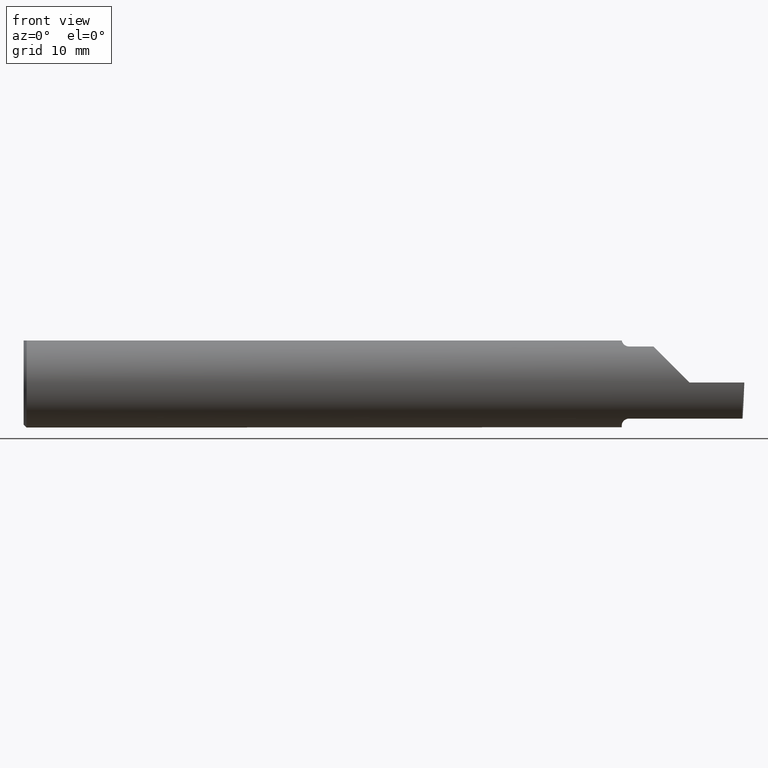
[diagram: clean part render]
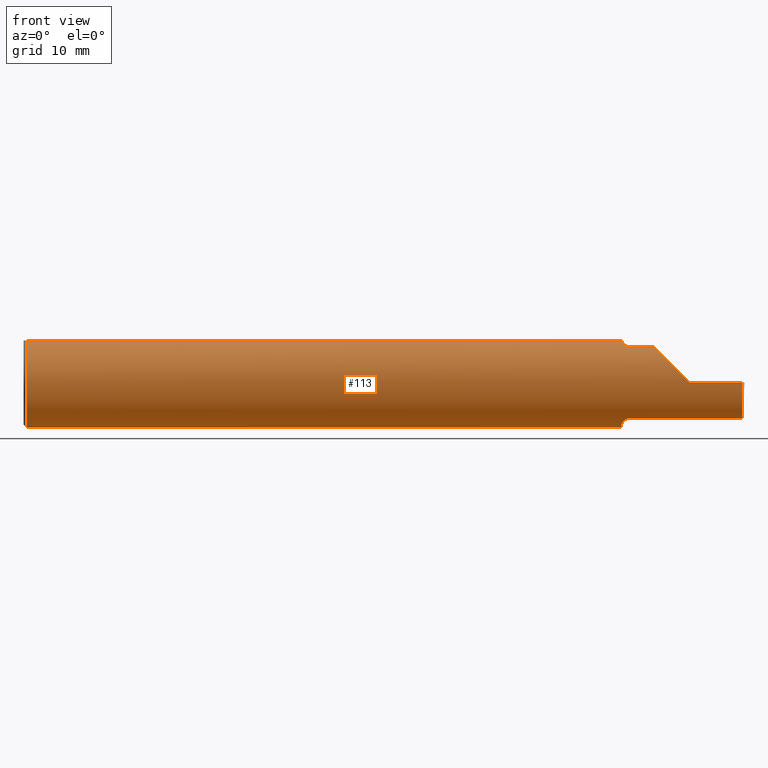
[diagram: same view with one face highlighted and labeled with its STEP entity id]
A machine part, front view. The second image highlights one B-rep face of the part: STEP entity #113.
In plain terms, the highlighted cylindrical surface (partial cylindrical patch) has radius 3.9649 mm, axis along (-1, -0, -0).
Its self-contained STEP definition (entity closure, byte-faithful):
#1 = CARTESIAN_POINT ( 'NONE',  ( 2.100000000000000089, -0.09360841750841740472, -0.1249186702281520622 ) ) ;
#13 = ORIENTED_EDGE ( 'NONE', *, *, #136, .T. ) ;
#24 = B_SPLINE_CURVE_WITH_KNOTS ( 'NONE', 3,
 ( #446, #800, #247, #492, #433, #679, #61, #557 ),
 .UNSPECIFIED., .F., .F.,
 ( 4, 2, 2, 4 ),
 ( 2.042507625475088449E-06, 0.0005263182385139183713, 0.0007884561039581399356, 0.001050593969402361608 ),
 .UNSPECIFIED. ) ;
#25 = VECTOR ( 'NONE', #349, 39.37007874015748143 ) ;
#26 = AXIS2_PLACEMENT_3D ( 'NONE', #325, #684, #569 ) ;
#29 = VERTEX_POINT ( 'NONE', #788 ) ;
#31 = CARTESIAN_POINT ( 'NONE',  ( 0.000000000000000000, 0.05497272050753933964, 0.1460999999999998689 ) ) ;
#39 = CARTESIAN_POINT ( 'NONE',  ( 2.280730820000000048, -0.09360841750841740472, 0.1249186702281520484 ) ) ;
#40 = FACE_OUTER_BOUND ( 'NONE', #229, .T. ) ;
#58 = CARTESIAN_POINT ( 'NONE',  ( 2.075000000000000178, 0.000000000000000000, 0.000000000000000000 ) ) ;
#61 = CARTESIAN_POINT ( 'NONE',  ( 2.085319203512566943, -0.08709887368156811471, 0.1295644080582772639 ) ) ;
#68 = CARTESIAN_POINT ( 'NONE',  ( 2.080057722617700833, -0.07943655142502258071, -0.1344116409581927463 ) ) ;
#76 = CARTESIAN_POINT ( 'NONE',  ( 2.310000000000000053, -0.1560999999999999888, 2.326828918379970872E-17 ) ) ;
#78 = LINE ( 'NONE', #706, #371 ) ;
#80 = CIRCLE ( 'NONE', #26, 0.1560999999999999888 ) ;
#87 = VERTEX_POINT ( 'NONE', #375 ) ;
#91 = VERTEX_POINT ( 'NONE', #419 ) ;
#93 = CIRCLE ( 'NONE', #546, 0.1560999999999999888 ) ;
#97 = DIRECTION ( 'NONE',  ( -1.000000000000000000, -0.000000000000000000, -0.000000000000000000 ) ) ;
#105 = LINE ( 'NONE', #357, #303 ) ;
#107 = EDGE_CURVE ( 'NONE', #334, #132, #105, .T. ) ;
#113 = ADVANCED_FACE ( 'NONE', ( #40 ), #297, .T. ) ;
#119 = VERTEX_POINT ( 'NONE', #137 ) ;
#123 = CARTESIAN_POINT ( 'NONE',  ( 2.494928209896765114, -0.1560999999999999888, 0.000000000000000000 ) ) ;
#129 = CARTESIAN_POINT ( 'NONE',  ( 2.493178846255211134, -0.1561000000000000165, -0.05008759057876781273 ) ) ;
#130 = CARTESIAN_POINT ( 'NONE',  ( 2.095361275910303522, -0.09360841750841737696, -0.1249186702281520900 ) ) ;
#132 = VERTEX_POINT ( 'NONE', #620 ) ;
#136 = EDGE_CURVE ( 'NONE', #795, #776, #430, .T. ) ;
#137 = CARTESIAN_POINT ( 'NONE',  ( 2.087810002172886925, -0.08909999999996048858, -0.1281733201567833991 ) ) ;
#168 =( BOUNDED_CURVE ( )  B_SPLINE_CURVE ( 3, ( #76, #807, #689, #197 ),
 .UNSPECIFIED., .F., .T. ) 
 B_SPLINE_CURVE_WITH_KNOTS ( ( 4, 4 ),
 ( 4.712388980384689674, 5.640097190903854418 ),
 .UNSPECIFIED. ) 
 CURVE ( )  GEOMETRIC_REPRESENTATION_ITEM ( )  RATIONAL_B_SPLINE_CURVE ( ( 1.000000000000000000, 0.9295565493311498395, 0.9295565493311498395, 1.000000000000000000 ) ) 
 REPRESENTATION_ITEM ( '' )  );
#172 = AXIS2_PLACEMENT_3D ( 'NONE', #786, #509, #692 ) ;
#173 = VECTOR ( 'NONE', #631, 39.37007874015748143 ) ;
#189 = CARTESIAN_POINT ( 'NONE',  ( 2.083312875394042418, -0.08466547365232433842, -0.1311808389156052523 ) ) ;
#197 = CARTESIAN_POINT ( 'NONE',  ( 2.185081329771846992, -0.09360841750841733533, 0.1249186702281521039 ) ) ;
#203 = ORIENTED_EDGE ( 'NONE', *, *, #675, .F. ) ;
#208 = VERTEX_POINT ( 'NONE', #264 ) ;
#224 = ORIENTED_EDGE ( 'NONE', *, *, #589, .T. ) ;
#229 = EDGE_LOOP ( 'NONE', ( #363, #350, #224, #711, #394, #595, #655, #693, #300, #672, #13, #486, #458, #203, #583 ) ) ;
#242 = EDGE_CURVE ( 'NONE', #451, #29, #24, .T. ) ;
#247 = CARTESIAN_POINT ( 'NONE',  ( 2.075844056398636894, -0.06777540567362916324, 0.1407770456887920685 ) ) ;
#251 = CARTESIAN_POINT ( 'NONE',  ( 2.074999999999997513, -0.06152246774674052093, -0.1436327148497734130 ) ) ;
#252 = CARTESIAN_POINT ( 'NONE',  ( 2.087810002172886925, -0.08909999999996048858, -0.1281733201567833991 ) ) ;
#253 = DIRECTION ( 'NONE',  ( 0.000000000000000000, 0.000000000000000000, -1.000000000000000000 ) ) ;
#254 = EDGE_CURVE ( 'NONE', #305, #87, #78, .T. ) ;
#264 = CARTESIAN_POINT ( 'NONE',  ( 2.100000000000000089, -0.09360841750841740472, 0.1249186702281520622 ) ) ;
#267 = CARTESIAN_POINT ( 'NONE',  ( 2.087810002172886925, -0.08909999999996048858, -0.1281733201567833991 ) ) ;
#283 = B_SPLINE_CURVE_WITH_KNOTS ( 'NONE', 3,
 ( #336, #594, #364, #662 ),
 .UNSPECIFIED., .F., .F.,
 ( 4, 4 ),
 ( 0.001050593969402361608, 0.001393966686689393020 ),
 .UNSPECIFIED. ) ;
#290 = EDGE_CURVE ( 'NONE', #469, #776, #761, .T. ) ;
#292 = LINE ( 'NONE', #39, #548 ) ;
#297 = CYLINDRICAL_SURFACE ( 'NONE', #172, 0.1560999999999999888 ) ;
#300 = ORIENTED_EDGE ( 'NONE', *, *, #107, .F. ) ;
#303 = VECTOR ( 'NONE', #600, 39.37007874015748143 ) ;
#305 = VERTEX_POINT ( 'NONE', #585 ) ;
#311 = DIRECTION ( 'NONE',  ( 1.000000000000000000, 0.000000000000000000, 0.000000000000000000 ) ) ;
#321 = LINE ( 'NONE', #380, #173 ) ;
#325 = CARTESIAN_POINT ( 'NONE',  ( 0.01000000000000013205, 0.000000000000000000, 0.000000000000000000 ) ) ;
#334 = VERTEX_POINT ( 'NONE', #524 ) ;
#336 = CARTESIAN_POINT ( 'NONE',  ( 2.087810002172223012, -0.08909999999984946628, 0.1281733201569305314 ) ) ;
#340 = EDGE_CURVE ( 'NONE', #728, #469, #93, .T. ) ;
#349 = DIRECTION ( 'NONE',  ( -1.000000000000000000, -0.000000000000000000, -0.000000000000000000 ) ) ;
#350 = ORIENTED_EDGE ( 'NONE', *, *, #760, .T. ) ;
#357 = CARTESIAN_POINT ( 'NONE',  ( 0.000000000000000000, -0.05497272050753933964, 0.1460999999999998689 ) ) ;
#363 = ORIENTED_EDGE ( 'NONE', *, *, #254, .F. ) ;
#364 = CARTESIAN_POINT ( 'NONE',  ( 2.095364775055373219, -0.09360841750841734921, 0.1249186702281521177 ) ) ;
#371 = VECTOR ( 'NONE', #97, 39.37007874015748143 ) ;
#375 = CARTESIAN_POINT ( 'NONE',  ( 2.100000000000000089, -0.09360841750841740472, -0.1249186702281520622 ) ) ;
#380 = CARTESIAN_POINT ( 'NONE',  ( 3.749399456654646757E-32, -0.1560999999999999333, 3.061616997868383634E-16 ) ) ;
#384 = EDGE_CURVE ( 'NONE', #29, #208, #283, .T. ) ;
#392 = CARTESIAN_POINT ( 'NONE',  ( 2.075847904676645594, -0.06780574120017834883, -0.1407631332654325496 ) ) ;
#394 = ORIENTED_EDGE ( 'NONE', *, *, #508, .F. ) ;
#419 = CARTESIAN_POINT ( 'NONE',  ( 2.494928209896765114, -0.1560999999999999888, 0.000000000000000000 ) ) ;
#426 = CARTESIAN_POINT ( 'NONE',  ( 2.075000000000000178, 0.05497272050753933964, 0.1460999999999998689 ) ) ;
#427 = VERTEX_POINT ( 'NONE', #733 ) ;
#430 = CIRCLE ( 'NONE', #544, 0.1560999999999999888 ) ;
#433 = CARTESIAN_POINT ( 'NONE',  ( 2.080056522840238564, -0.07943464720522717959, 0.1344128205797974207 ) ) ;
#446 = CARTESIAN_POINT ( 'NONE',  ( 2.075000000000000178, -0.05502817059483724321, 0.1460791239054557156 ) ) ;
#451 = VERTEX_POINT ( 'NONE', #787 ) ;
#458 = ORIENTED_EDGE ( 'NONE', *, *, #340, .F. ) ;
#461 = DIRECTION ( 'NONE',  ( 0.000000000000000000, 0.000000000000000000, -1.000000000000000000 ) ) ;
#469 = VERTEX_POINT ( 'NONE', #426 ) ;
#486 = ORIENTED_EDGE ( 'NONE', *, *, #290, .F. ) ;
#489 = B_SPLINE_CURVE_WITH_KNOTS ( 'NONE', 3,
 ( #267, #503, #189, #68, #568, #392, #251, #635 ),
 .UNSPECIFIED., .F., .F.,
 ( 4, 2, 2, 4 ),
 ( 0.0003463854958010601989, 0.0006107451645895059728, 0.0008751048333779517466, 0.001403824170954849149 ),
 .UNSPECIFIED. ) ;
#490 = CARTESIAN_POINT ( 'NONE',  ( 2.091077244708473337, -0.09172492714866081753, -0.1263485955677198791 ) ) ;
#492 = CARTESIAN_POINT ( 'NONE',  ( 2.078785422859119603, -0.07659497035394384479, 0.1360571150960168396 ) ) ;
#497 = DIRECTION ( 'NONE',  ( 1.000000000000000000, 0.000000000000000000, 0.000000000000000000 ) ) ;
#503 = CARTESIAN_POINT ( 'NONE',  ( 2.085315048287044171, -0.08709553534231921634, -0.1295667287130569389 ) ) ;
#508 = EDGE_CURVE ( 'NONE', #208, #614, #292, .T. ) ;
#509 = DIRECTION ( 'NONE',  ( -1.000000000000000000, -0.000000000000000000, -0.000000000000000000 ) ) ;
#511 = CARTESIAN_POINT ( 'NONE',  ( 2.075000000000000178, -0.05502817059483724321, -0.1460791239054557156 ) ) ;
#524 = CARTESIAN_POINT ( 'NONE',  ( 0.01000000000000013205, -0.05497272050753933964, 0.1460999999999998689 ) ) ;
#526 = B_SPLINE_CURVE_WITH_KNOTS ( 'NONE', 3,
 ( #1, #130, #490, #252 ),
 .UNSPECIFIED., .F., .F.,
 ( 4, 4 ),
 ( 1.958690481381664333E-07, 0.0003463854958010601989 ),
 .UNSPECIFIED. ) ;
#544 = AXIS2_PLACEMENT_3D ( 'NONE', #562, #497, #253 ) ;
#546 = AXIS2_PLACEMENT_3D ( 'NONE', #653, #775, #461 ) ;
#548 = VECTOR ( 'NONE', #783, 39.37007874015748143 ) ;
#557 = CARTESIAN_POINT ( 'NONE',  ( 2.087810002172223012, -0.08909999999984946628, 0.1281733201569305314 ) ) ;
#559 = CARTESIAN_POINT ( 'NONE',  ( 2.491656083944432165, -0.09360841750841740472, -0.1249186702281520484 ) ) ;
#562 = CARTESIAN_POINT ( 'NONE',  ( 0.01000000000000013205, 0.000000000000000000, 0.000000000000000000 ) ) ;
#564 = CARTESIAN_POINT ( 'NONE',  ( 0.01000000000000013205, 0.05497272050753933964, 0.1460999999999998689 ) ) ;
#568 = CARTESIAN_POINT ( 'NONE',  ( 2.078804698179399946, -0.07664326672408298957, -0.1360300949145557270 ) ) ;
#569 = DIRECTION ( 'NONE',  ( 0.000000000000000000, 0.000000000000000000, -1.000000000000000000 ) ) ;
#581 = EDGE_CURVE ( 'NONE', #334, #795, #80, .T. ) ;
#583 = ORIENTED_EDGE ( 'NONE', *, *, #639, .F. ) ;
#585 = CARTESIAN_POINT ( 'NONE',  ( 2.491656083944432165, -0.09360841750841740472, -0.1249186702281520484 ) ) ;
#589 = EDGE_CURVE ( 'NONE', #91, #427, #321, .T. ) ;
#594 = CARTESIAN_POINT ( 'NONE',  ( 2.091072683443918390, -0.09172126259464279119, 0.1263511429915042394 ) ) ;
#595 = ORIENTED_EDGE ( 'NONE', *, *, #384, .F. ) ;
#600 = DIRECTION ( 'NONE',  ( 1.000000000000000000, 0.000000000000000000, 0.000000000000000000 ) ) ;
#612 = CIRCLE ( 'NONE', #718, 0.1560999999999999888 ) ;
#614 = VERTEX_POINT ( 'NONE', #744 ) ;
#618 = CARTESIAN_POINT ( 'NONE',  ( 0.01000000000000013205, 0.000000000000000000, -0.1560999999999999888 ) ) ;
#620 = CARTESIAN_POINT ( 'NONE',  ( 2.075000000000000178, -0.05497272050753934658, 0.1460999999999998689 ) ) ;
#631 = DIRECTION ( 'NONE',  ( -1.000000000000000000, -0.000000000000000000, -0.000000000000000000 ) ) ;
#635 = CARTESIAN_POINT ( 'NONE',  ( 2.075000000000000178, -0.05502817059483724321, -0.1460791239054557156 ) ) ;
#639 = EDGE_CURVE ( 'NONE', #87, #119, #526, .T. ) ;
#653 = CARTESIAN_POINT ( 'NONE',  ( 2.075000000000000178, 0.000000000000000000, 0.000000000000000000 ) ) ;
#655 = ORIENTED_EDGE ( 'NONE', *, *, #242, .F. ) ;
#662 = CARTESIAN_POINT ( 'NONE',  ( 2.100000000000000089, -0.09360841750841740472, 0.1249186702281520622 ) ) ;
#665 = EDGE_CURVE ( 'NONE', #427, #614, #168, .T. ) ;
#672 = ORIENTED_EDGE ( 'NONE', *, *, #581, .T. ) ;
#675 = EDGE_CURVE ( 'NONE', #119, #728, #489, .T. ) ;
#679 = CARTESIAN_POINT ( 'NONE',  ( 2.083314215045239948, -0.08466760255782139477, 0.1311795204669788661 ) ) ;
#683 = CARTESIAN_POINT ( 'NONE',  ( 2.492005481760536156, -0.1336908980339254205, -0.09488266708345013956 ) ) ;
#684 = DIRECTION ( 'NONE',  ( 1.000000000000000000, 0.000000000000000000, 0.000000000000000000 ) ) ;
#689 = CARTESIAN_POINT ( 'NONE',  ( 2.215117332916549220, -0.1336908980339253650, 0.09488266708345012568 ) ) ;
#692 = DIRECTION ( 'NONE',  ( 0.000000000000000000, 0.000000000000000000, 1.000000000000000000 ) ) ;
#693 = ORIENTED_EDGE ( 'NONE', *, *, #798, .F. ) ;
#706 = CARTESIAN_POINT ( 'NONE',  ( 2.280730820000000048, -0.09360841750841740472, -0.1249186702281520484 ) ) ;
#711 = ORIENTED_EDGE ( 'NONE', *, *, #665, .T. ) ;
#718 = AXIS2_PLACEMENT_3D ( 'NONE', #58, #311, #802 ) ;
#728 = VERTEX_POINT ( 'NONE', #511 ) ;
#733 = CARTESIAN_POINT ( 'NONE',  ( 2.310000000000000053, -0.1560999999999999888, 2.326828918379970872E-17 ) ) ;
#744 = CARTESIAN_POINT ( 'NONE',  ( 2.185081329771846992, -0.09360841750841733533, 0.1249186702281521039 ) ) ;
#760 = EDGE_CURVE ( 'NONE', #305, #91, #772, .T. ) ;
#761 = LINE ( 'NONE', #31, #25 ) ;
#772 =( BOUNDED_CURVE ( )  B_SPLINE_CURVE ( 3, ( #559, #683, #129, #123 ),
 .UNSPECIFIED., .F., .T. ) 
 B_SPLINE_CURVE_WITH_KNOTS ( ( 4, 4 ),
 ( 0.1796232990704038912, 1.107331509589568608 ),
 .UNSPECIFIED. ) 
 CURVE ( )  GEOMETRIC_REPRESENTATION_ITEM ( )  RATIONAL_B_SPLINE_CURVE ( ( 1.000000000000000000, 0.9295565493311498395, 0.9295565493311498395, 1.000000000000000000 ) ) 
 REPRESENTATION_ITEM ( '' )  );
#775 = DIRECTION ( 'NONE',  ( 1.000000000000000000, 0.000000000000000000, 0.000000000000000000 ) ) ;
#776 = VERTEX_POINT ( 'NONE', #564 ) ;
#783 = DIRECTION ( 'NONE',  ( 1.000000000000000000, 0.000000000000000000, 0.000000000000000000 ) ) ;
#786 = CARTESIAN_POINT ( 'NONE',  ( 0.000000000000000000, 0.000000000000000000, 0.000000000000000000 ) ) ;
#787 = CARTESIAN_POINT ( 'NONE',  ( 2.075000000000000178, -0.05502817059483724321, 0.1460791239054557156 ) ) ;
#788 = CARTESIAN_POINT ( 'NONE',  ( 2.087810002172223012, -0.08909999999984946628, 0.1281733201569305314 ) ) ;
#795 = VERTEX_POINT ( 'NONE', #618 ) ;
#798 = EDGE_CURVE ( 'NONE', #132, #451, #612, .T. ) ;
#800 = CARTESIAN_POINT ( 'NONE',  ( 2.074999999999999734, -0.06156212810510099109, 0.1436177747480845146 ) ) ;
#802 = DIRECTION ( 'NONE',  ( 0.000000000000000000, 0.000000000000000000, -1.000000000000000000 ) ) ;
#807 = CARTESIAN_POINT ( 'NONE',  ( 2.259912409421231949, -0.1560999999999999333, 0.05008759057876778498 ) ) ;